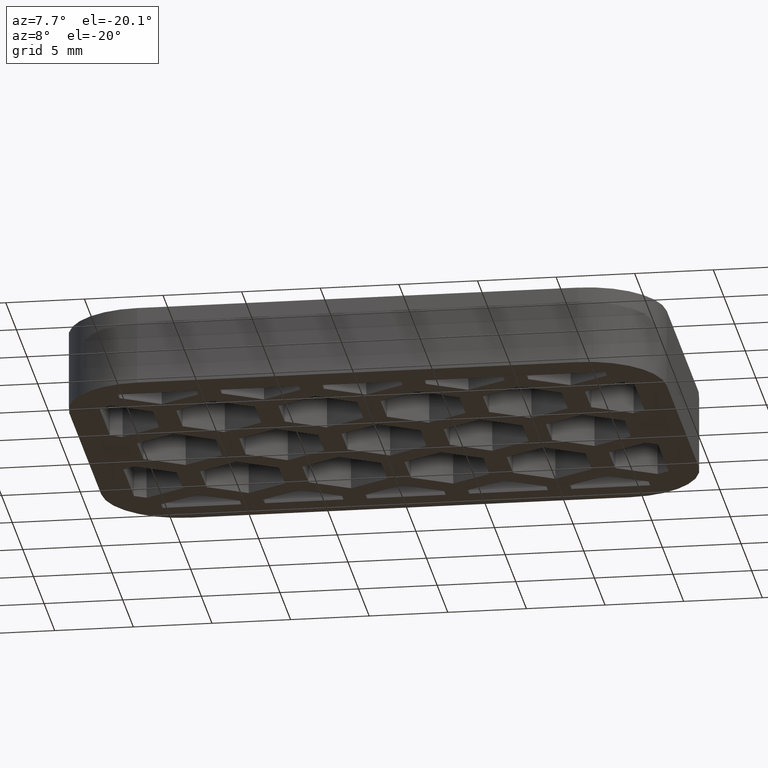
[diagram: clean part render]
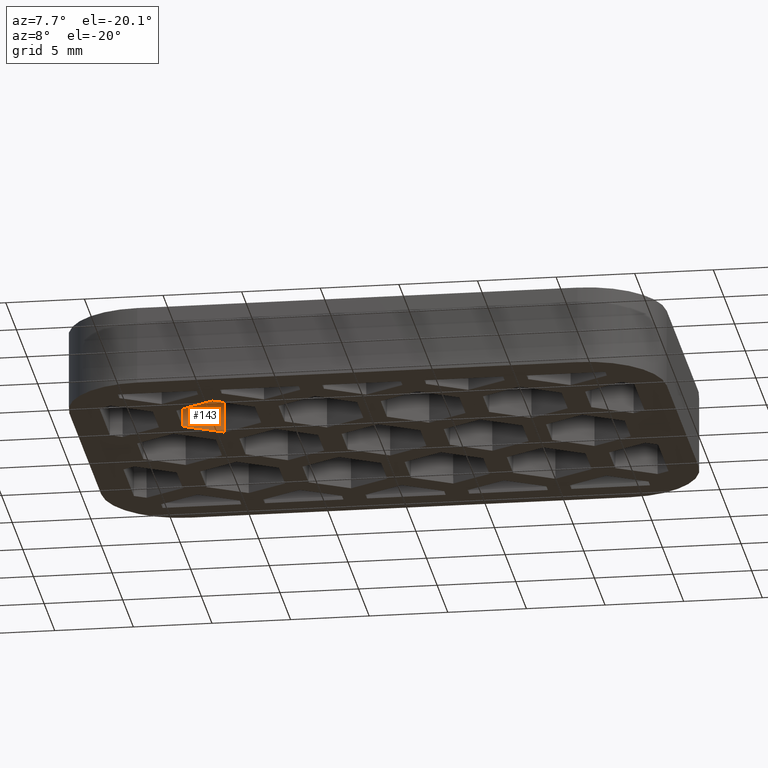
[diagram: same view with one face highlighted and labeled with its STEP entity id]
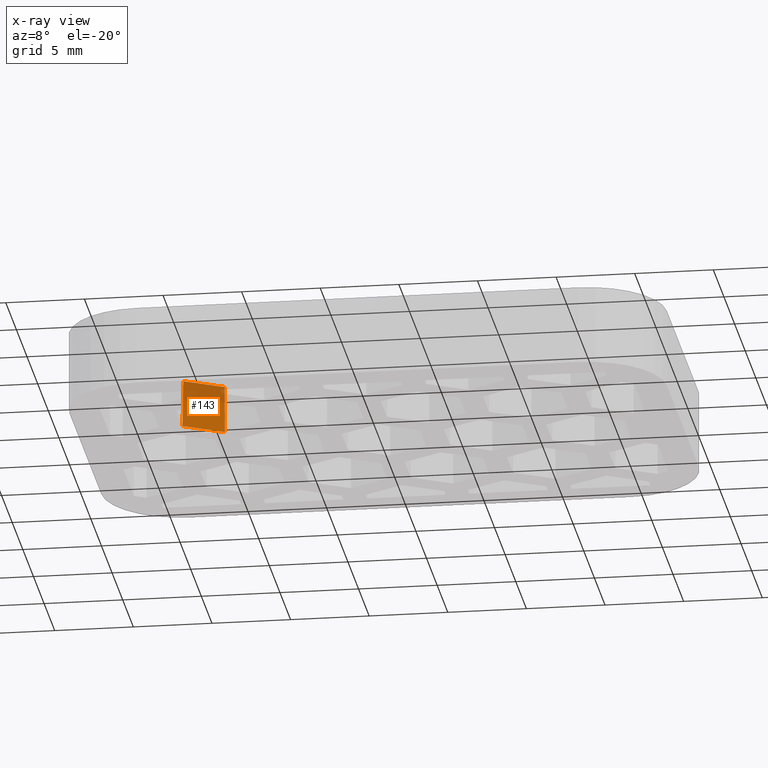
[diagram: x-ray of the same camera — body ghosted, the highlighted face saturated]
A machine part, auxiliary view. The second image highlights one B-rep face of the part: STEP entity #143.
The next image is the same camera in x-ray: the body ghosted, the highlighted face saturated — about 39% of this face is hidden behind the body in this view.
In plain terms, the highlighted planar face has unit normal (-0.4999, 0.8659, 0.0175).
Its self-contained STEP definition (entity closure, byte-faithful):
#143 = ADVANCED_FACE( '', ( #445 ), #446, .F. );
#445 = FACE_OUTER_BOUND( '', #933, .T. );
#446 = PLANE( '', #934 );
#933 = EDGE_LOOP( '', ( #1792, #1793, #1794, #1795 ) );
#934 = AXIS2_PLACEMENT_3D( '', #1796, #1797, #1798 );
#1792 = ORIENTED_EDGE( '', *, *, #3331, .T. );
#1793 = ORIENTED_EDGE( '', *, *, #3333, .T. );
#1794 = ORIENTED_EDGE( '', *, *, #3334, .F. );
#1795 = ORIENTED_EDGE( '', *, *, #3335, .F. );
#1796 = CARTESIAN_POINT( '', ( -6.93889390390723E-015, 2.88675134594813, -7.11565060591490E-015 ) );
#1797 = DIRECTION( '', ( -0.499923847578196, 0.865893503920754, 0.0174524064372835 ) );
#1798 = DIRECTION( '', ( -0.866025403784439, -0.500000000000000, 3.06058338817720E-017 ) );
#3331 = EDGE_CURVE( '', #4077, #4075, #4078, .T. );
#3333 = EDGE_CURVE( '', #4075, #4080, #4081, .T. );
#3334 = EDGE_CURVE( '', #4082, #4080, #4083, .T. );
#3335 = EDGE_CURVE( '', #4077, #4082, #4084, .T. );
#4075 = VERTEX_POINT( '', #5253 );
#4077 = VERTEX_POINT( '', #5256 );
#4078 = LINE( '', #5257, #5258 );
#4080 = VERTEX_POINT( '', #5261 );
#4081 = LINE( '', #5262, #5263 );
#4082 = VERTEX_POINT( '', #5264 );
#4083 = LINE( '', #5265, #5266 );
#4084 = LINE( '', #5267, #5268 );
#5253 = CARTESIAN_POINT( '', ( -12.2500000000000, -4.18578945162478, -6.68259668599611E-015 ) );
#5256 = CARTESIAN_POINT( '', ( -12.1976348052154, -4.21602251092987, 2.99999999999998 ) );
#5257 = CARTESIAN_POINT( '', ( -12.2504822129847, -4.18551104582826, -0.0276259633910783 ) );
#5258 = VECTOR( '', #6363, 1000.00000000000 );
#5261 = CARTESIAN_POINT( '', ( -9.75000000000001, -2.74241377865072, -6.77097503699994E-015 ) );
#5262 = CARTESIAN_POINT( '', ( -6.93889390390723E-015, 2.88675134594813, -7.11565060591490E-015 ) );
#5263 = VECTOR( '', #6365, 1000.00000000000 );
#5264 = CARTESIAN_POINT( '', ( -9.75000000000000, -2.80287989726089, 2.99999999999998 ) );
#5265 = CARTESIAN_POINT( '', ( -9.75000000000001, -2.74012792053192, -0.113411849710705 ) );
#5266 = VECTOR( '', #6366, 1000.00000000000 );
#5267 = CARTESIAN_POINT( '', ( -10.9271840327394, -3.48252741544868, 2.99999999999998 ) );
#5268 = VECTOR( '', #6367, 1000.00000000000 );
#6363 = DIRECTION( '', ( -0.0174515205435363, 0.0100756400835789, -0.999796942337605 ) );
#6365 = DIRECTION( '', ( 0.866025403784439, 0.500000000000000, -3.06151588455594E-017 ) );
#6366 = DIRECTION( '', ( -3.00523943436880E-018, 0.0201512801671579, -0.999796942337605 ) );
#6367 = DIRECTION( '', ( 0.866025403784439, 0.500000000000000, -3.06151588455594E-017 ) );